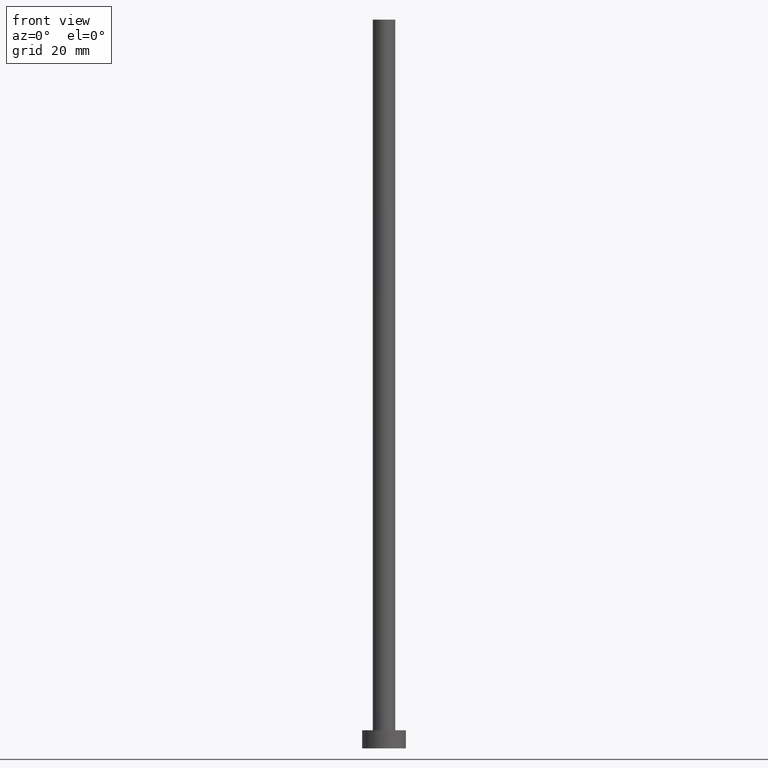
[diagram: clean part render]
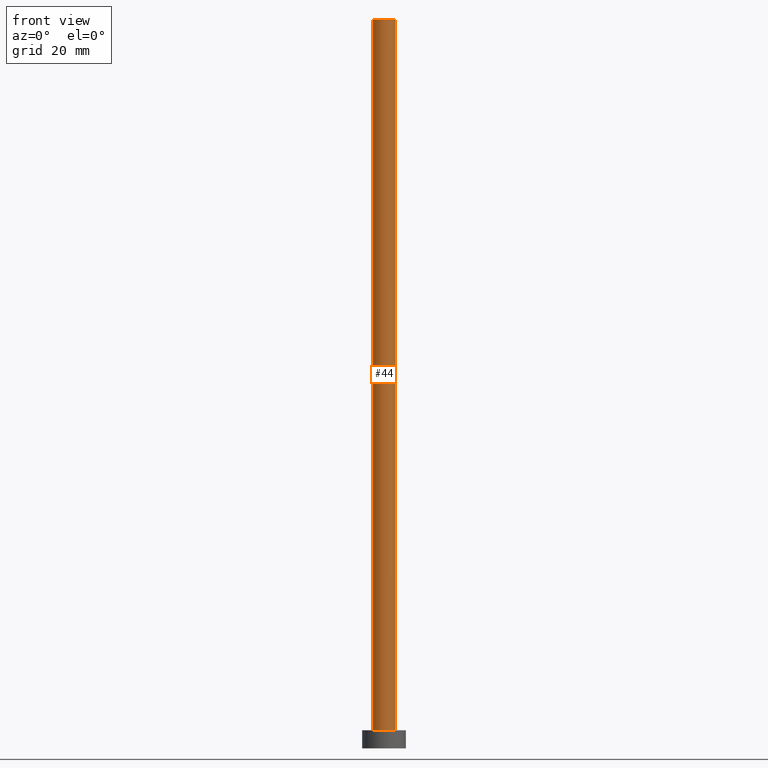
[diagram: same view with one face highlighted and labeled with its STEP entity id]
A machine part, front view. The second image highlights one B-rep face of the part: STEP entity #44.
In plain terms, the highlighted cylindrical surface (edge-blend (fillet) strip) has radius 3.1 mm, axis along (-0, -0, -1).
Its self-contained STEP definition (entity closure, byte-faithful):
#3 = VECTOR ( 'NONE', #184, 1000.000000000000000 ) ;
#11 = CIRCLE ( 'NONE', #157, 3.100000000000000089 ) ;
#17 = LINE ( 'NONE', #97, #3 ) ;
#33 = AXIS2_PLACEMENT_3D ( 'NONE', #245, #100, #228 ) ;
#44 = ADVANCED_FACE ( 'NONE', ( #111 ), #114, .T. ) ;
#66 = VERTEX_POINT ( 'NONE', #74 ) ;
#72 = DIRECTION ( 'NONE',  ( 1.000000000000000000, 0.000000000000000000, 0.000000000000000000 ) ) ;
#74 = CARTESIAN_POINT ( 'NONE',  ( 3.100000000000000089, 3.796405077356794918E-16, 200.0000000000000000 ) ) ;
#78 = LINE ( 'NONE', #153, #249 ) ;
#79 = VERTEX_POINT ( 'NONE', #164 ) ;
#82 = EDGE_CURVE ( 'NONE', #79, #124, #78, .T. ) ;
#96 = AXIS2_PLACEMENT_3D ( 'NONE', #134, #186, #254 ) ;
#97 = CARTESIAN_POINT ( 'NONE',  ( 3.100000000000000089, 3.796405077356794918E-16, 200.0000000000000000 ) ) ;
#98 = ORIENTED_EDGE ( 'NONE', *, *, #104, .F. ) ;
#100 = DIRECTION ( 'NONE',  ( -0.000000000000000000, -0.000000000000000000, -1.000000000000000000 ) ) ;
#103 = ORIENTED_EDGE ( 'NONE', *, *, #174, .T. ) ;
#104 = EDGE_CURVE ( 'NONE', #79, #66, #136, .T. ) ;
#111 = FACE_OUTER_BOUND ( 'NONE', #180, .T. ) ;
#114 = CYLINDRICAL_SURFACE ( 'NONE', #33, 3.100000000000000089 ) ;
#121 = VERTEX_POINT ( 'NONE', #212 ) ;
#124 = VERTEX_POINT ( 'NONE', #190 ) ;
#132 = EDGE_CURVE ( 'NONE', #66, #121, #17, .T. ) ;
#134 = CARTESIAN_POINT ( 'NONE',  ( 0.000000000000000000, 0.000000000000000000, 200.0000000000000000 ) ) ;
#136 = CIRCLE ( 'NONE', #96, 3.100000000000000089 ) ;
#142 = ORIENTED_EDGE ( 'NONE', *, *, #132, .F. ) ;
#153 = CARTESIAN_POINT ( 'NONE',  ( -3.100000000000000089, 0.000000000000000000, 200.0000000000000000 ) ) ;
#157 = AXIS2_PLACEMENT_3D ( 'NONE', #209, #244, #72 ) ;
#164 = CARTESIAN_POINT ( 'NONE',  ( -3.100000000000000089, 0.000000000000000000, 200.0000000000000000 ) ) ;
#174 = EDGE_CURVE ( 'NONE', #124, #121, #11, .T. ) ;
#180 = EDGE_LOOP ( 'NONE', ( #142, #98, #188, #103 ) ) ;
#184 = DIRECTION ( 'NONE',  ( -0.000000000000000000, -0.000000000000000000, -1.000000000000000000 ) ) ;
#186 = DIRECTION ( 'NONE',  ( 0.000000000000000000, 0.000000000000000000, 1.000000000000000000 ) ) ;
#188 = ORIENTED_EDGE ( 'NONE', *, *, #82, .T. ) ;
#190 = CARTESIAN_POINT ( 'NONE',  ( -3.100000000000000089, 0.000000000000000000, 5.000000000000000000 ) ) ;
#193 = DIRECTION ( 'NONE',  ( -0.000000000000000000, -0.000000000000000000, -1.000000000000000000 ) ) ;
#209 = CARTESIAN_POINT ( 'NONE',  ( 0.000000000000000000, 0.000000000000000000, 5.000000000000000000 ) ) ;
#212 = CARTESIAN_POINT ( 'NONE',  ( 3.100000000000000089, 3.796405077356794918E-16, 5.000000000000000000 ) ) ;
#228 = DIRECTION ( 'NONE',  ( -1.000000000000000000, 0.000000000000000000, 0.000000000000000000 ) ) ;
#244 = DIRECTION ( 'NONE',  ( 0.000000000000000000, 0.000000000000000000, 1.000000000000000000 ) ) ;
#245 = CARTESIAN_POINT ( 'NONE',  ( 0.000000000000000000, 0.000000000000000000, 200.0000000000000000 ) ) ;
#249 = VECTOR ( 'NONE', #193, 1000.000000000000000 ) ;
#254 = DIRECTION ( 'NONE',  ( 1.000000000000000000, 0.000000000000000000, 0.000000000000000000 ) ) ;